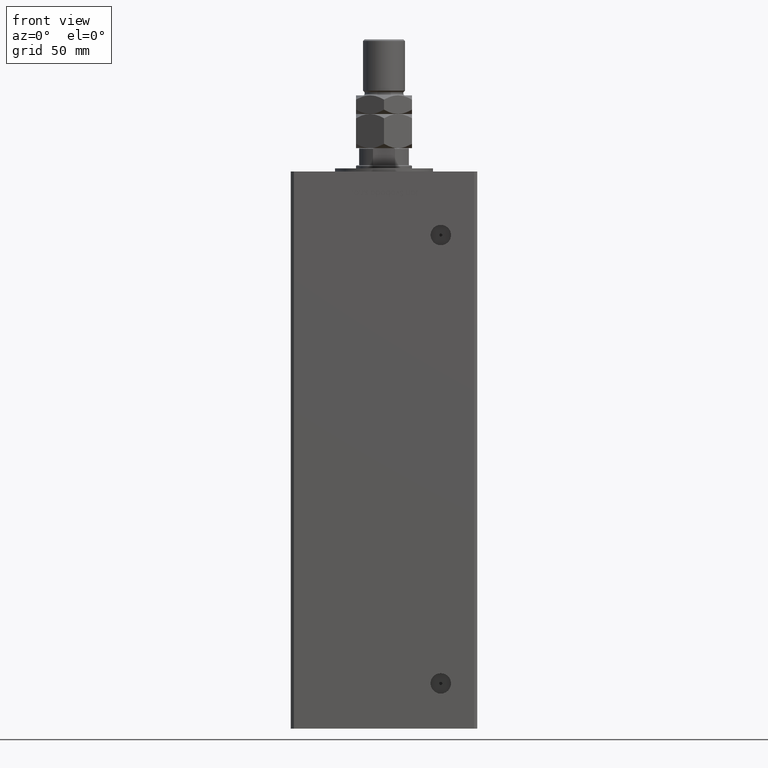
[diagram: clean part render]
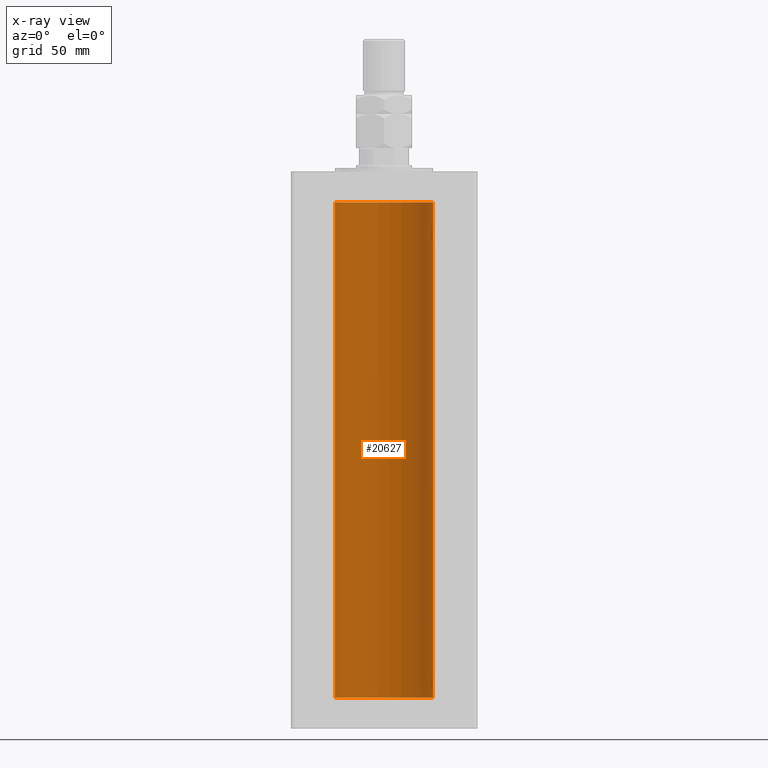
[diagram: x-ray — body ghosted, one internal face saturated and labeled with its STEP entity id]
A machine part, front view, then the same camera in x-ray: the body is ghosted and one INTERNAL B-rep face — a face not visible from any outside direction — is saturated and labeled: STEP entity #20627.
In plain terms, the highlighted cylindrical surface (partial cylindrical patch) has radius 31.5 mm, axis along (-0, -0, -1).
Its self-contained STEP definition (entity closure, byte-faithful):
#1446 = CIRCLE ( 'NONE', #50907, 31.50000000000000000 ) ;
#4004 = VECTOR ( 'NONE', #37797, 1000.000000000000000 ) ;
#6454 = CARTESIAN_POINT ( 'NONE',  ( 0.000000000000000000, 0.000000000000000000, 0.000000000000000000 ) ) ;
#7607 = AXIS2_PLACEMENT_3D ( 'NONE', #6454, #51840, #40151 ) ;
#8476 = CARTESIAN_POINT ( 'NONE',  ( -31.50000000000000000, 0.000000000000000000, 318.5000000000000000 ) ) ;
#8594 = LINE ( 'NONE', #25426, #51178 ) ;
#9236 = DIRECTION ( 'NONE',  ( -0.000000000000000000, -0.000000000000000000, -1.000000000000000000 ) ) ;
#10036 = CARTESIAN_POINT ( 'NONE',  ( 0.000000000000000000, 0.000000000000000000, 318.5000000000000000 ) ) ;
#11750 = VERTEX_POINT ( 'NONE', #33959 ) ;
#12019 = EDGE_LOOP ( 'NONE', ( #17343, #28849, #34211, #29644 ) ) ;
#12837 = LINE ( 'NONE', #8476, #4004 ) ;
#13223 = DIRECTION ( 'NONE',  ( -0.000000000000000000, -0.000000000000000000, -1.000000000000000000 ) ) ;
#17343 = ORIENTED_EDGE ( 'NONE', *, *, #53334, .F. ) ;
#20036 = VERTEX_POINT ( 'NONE', #43401 ) ;
#20627 = ADVANCED_FACE ( 'NONE', ( #53546 ), #20645, .F. ) ;
#20645 = CYLINDRICAL_SURFACE ( 'NONE', #39197, 31.50000000000000000 ) ;
#25426 = CARTESIAN_POINT ( 'NONE',  ( 31.50000000000000000, 3.857637417314162689E-15, 318.5000000000000000 ) ) ;
#26585 = DIRECTION ( 'NONE',  ( 1.000000000000000000, 0.000000000000000000, 0.000000000000000000 ) ) ;
#26851 = DIRECTION ( 'NONE',  ( -0.000000000000000000, 0.000000000000000000, 1.000000000000000000 ) ) ;
#28256 = VERTEX_POINT ( 'NONE', #43645 ) ;
#28849 = ORIENTED_EDGE ( 'NONE', *, *, #43971, .T. ) ;
#29644 = ORIENTED_EDGE ( 'NONE', *, *, #44618, .F. ) ;
#33608 = CIRCLE ( 'NONE', #7607, 31.50000000000000000 ) ;
#33959 = CARTESIAN_POINT ( 'NONE',  ( 31.50000000000000000, 3.857637417314162689E-15, 0.000000000000000000 ) ) ;
#34211 = ORIENTED_EDGE ( 'NONE', *, *, #42108, .T. ) ;
#37476 = CARTESIAN_POINT ( 'NONE',  ( 0.000000000000000000, 0.000000000000000000, 318.5000000000000000 ) ) ;
#37797 = DIRECTION ( 'NONE',  ( -0.000000000000000000, -0.000000000000000000, -1.000000000000000000 ) ) ;
#39197 = AXIS2_PLACEMENT_3D ( 'NONE', #37476, #9236, #46432 ) ;
#39831 = VERTEX_POINT ( 'NONE', #50655 ) ;
#40151 = DIRECTION ( 'NONE',  ( 1.000000000000000000, 0.000000000000000000, 0.000000000000000000 ) ) ;
#42108 = EDGE_CURVE ( 'NONE', #39831, #20036, #12837, .T. ) ;
#43401 = CARTESIAN_POINT ( 'NONE',  ( -31.50000000000000000, 0.000000000000000000, 0.000000000000000000 ) ) ;
#43645 = CARTESIAN_POINT ( 'NONE',  ( 31.50000000000000000, 3.857637417314162689E-15, 318.5000000000000000 ) ) ;
#43971 = EDGE_CURVE ( 'NONE', #28256, #39831, #1446, .T. ) ;
#44618 = EDGE_CURVE ( 'NONE', #11750, #20036, #33608, .T. ) ;
#46432 = DIRECTION ( 'NONE',  ( -1.000000000000000000, 0.000000000000000000, 0.000000000000000000 ) ) ;
#50655 = CARTESIAN_POINT ( 'NONE',  ( -31.50000000000000000, 0.000000000000000000, 318.5000000000000000 ) ) ;
#50907 = AXIS2_PLACEMENT_3D ( 'NONE', #10036, #26851, #26585 ) ;
#51178 = VECTOR ( 'NONE', #13223, 1000.000000000000000 ) ;
#51840 = DIRECTION ( 'NONE',  ( -0.000000000000000000, 0.000000000000000000, 1.000000000000000000 ) ) ;
#53334 = EDGE_CURVE ( 'NONE', #28256, #11750, #8594, .T. ) ;
#53546 = FACE_OUTER_BOUND ( 'NONE', #12019, .T. ) ;